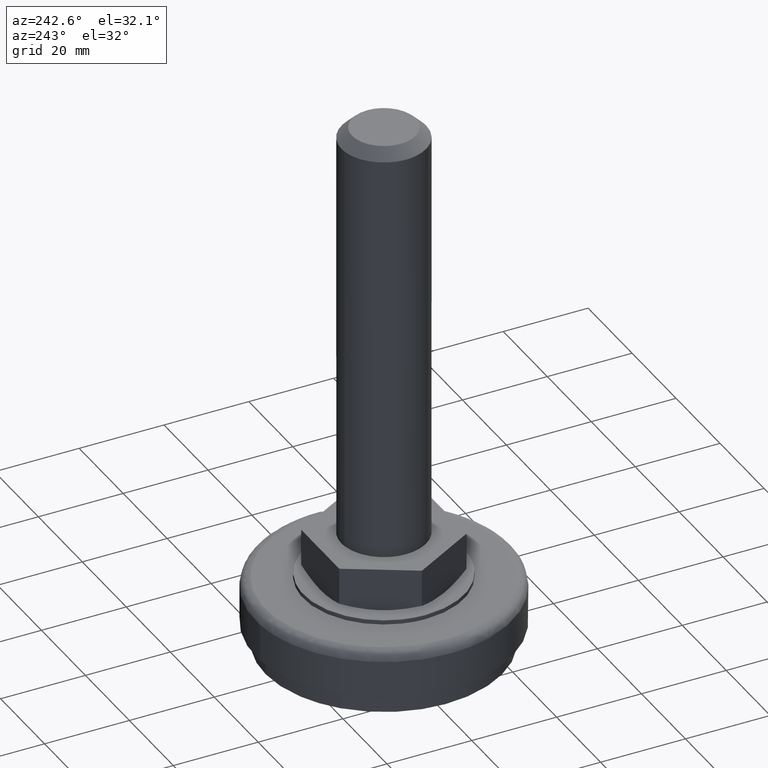
[diagram: clean part render]
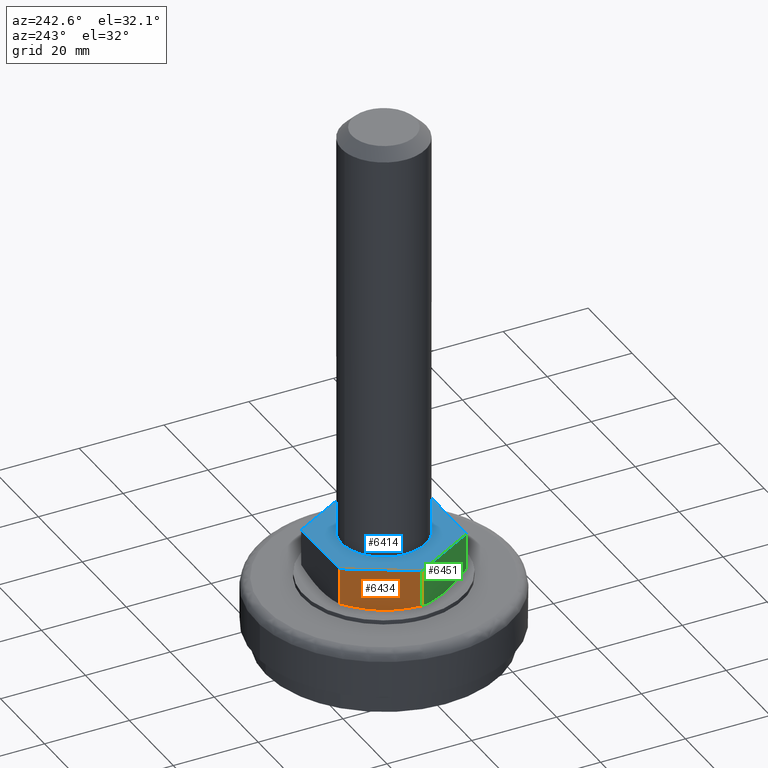
[diagram: same view with three faces highlighted in distinct colors, each labeled with its STEP entity id]
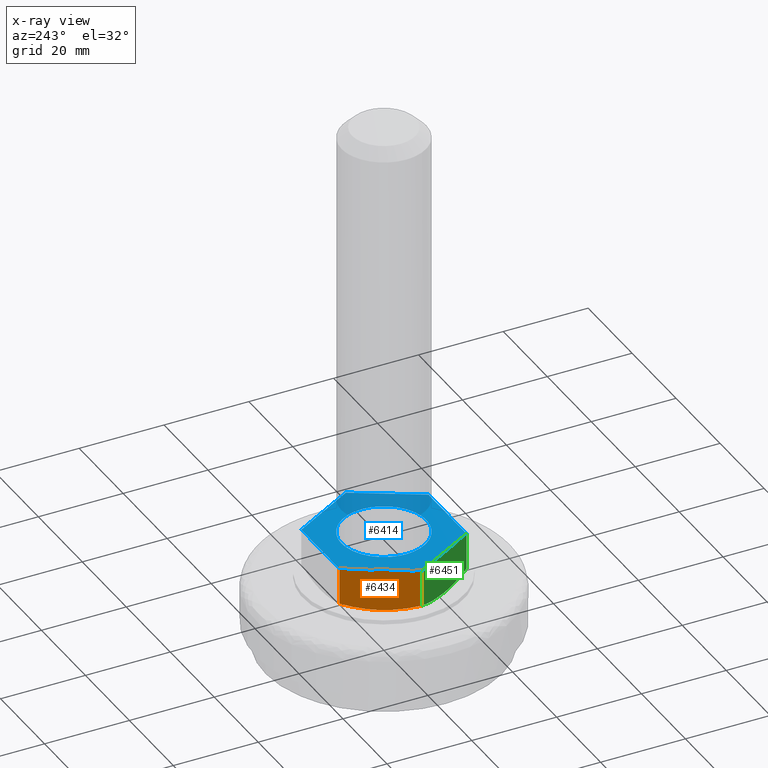
[diagram: x-ray of the same camera — body ghosted, the three highlighted faces saturated]
A machine part, auxiliary view with three faces highlighted in distinct colors.
The next image is the same camera in x-ray (body ghosted, the three faces saturated) — at least one of them is partly hidden behind the body in this view.
Their STEP definitions:

[orange] entity #6434 — the highlighted face is a freeform B-spline surface patch.
#4955=CARTESIAN_POINT('',(-17.300000000000001,0.0,18.339745951230949));
#4956=VERTEX_POINT('',#4955);
#4968=CARTESIAN_POINT('',(-8.639746000000001,15.0,18.345671394023451));
#4969=VERTEX_POINT('',#4968);
#4970=CARTESIAN_POINT('',(-8.639746000000001,15.0,18.345671394023451));
#4971=CARTESIAN_POINT('',(-9.346698966340242,13.775521538386331,17.936786780818139));
#4972=CARTESIAN_POINT('',(-10.058822484335931,12.542087418563140,17.599588998315021));
#4973=CARTESIAN_POINT('',(-11.138194585494050,10.672560090915260,17.248891436497171));
#4974=CARTESIAN_POINT('',(-11.499854347525430,10.046147005286279,17.157905752206489));
#4975=CARTESIAN_POINT('',(-12.227406586928559,8.785989555972773,17.034618634017662));
#4976=CARTESIAN_POINT('',(-12.593302747371361,8.152238813022050,17.002368263856621));
#4977=CARTESIAN_POINT('',(-13.053511370126790,7.355134092845090,17.001408450569720));
#4978=CARTESIAN_POINT('',(-13.145694399844620,7.195468401080466,17.003175605670020));
#4979=CARTESIAN_POINT('',(-13.330345165331980,6.875643892202268,17.010657207356971));
#4980=CARTESIAN_POINT('',(-13.422653180681939,6.715761718971631,17.016368104078960));
#4981=CARTESIAN_POINT('',(-13.698904168786321,6.237280969842828,17.039291775102338));
#4982=CARTESIAN_POINT('',(-13.882431816609071,5.919401757831108,17.062310992847959));
#4983=CARTESIAN_POINT('',(-14.431178601310799,4.968944442084268,17.153576613393700));
#4984=CARTESIAN_POINT('',(-14.794557260691599,4.339554138900086,17.244083217684519));
#4985=CARTESIAN_POINT('',(-15.878224604632839,2.462587232488510,17.593839847269571));
#4986=CARTESIAN_POINT('',(-16.592069824133230,1.226171038170648,17.931022273626709));
#4987=CARTESIAN_POINT('',(-17.300000000000001,0.0,18.339745951230949));
#4988=B_SPLINE_CURVE_WITH_KNOTS('',3,(#4970,#4971,#4972,#4973,#4974,#4975,#4976,#4977,#4978,#4979,#4980,#4981,#4982,#4983,#4984,#4985,#4986,#4987),.UNSPECIFIED.,.F.,.U.,(4,2,2,2,2,2,2,2,4),(0.0,0.250000000000000,0.375000000000000,0.500000000000000,0.531250000000000,0.562500000000000,0.625000000000000,0.750000000000000,1.0),.UNSPECIFIED.);
#4989=EDGE_CURVE('',#4969,#4956,#4988,.T.);
#6364=CARTESIAN_POINT('',(-8.639746000000001,15.0,27.0));
#6365=VERTEX_POINT('',#6364);
#6373=CARTESIAN_POINT('',(-17.300000000000001,0.0,27.0));
#6374=VERTEX_POINT('',#6373);
#6375=CARTESIAN_POINT('',(-17.300000000000001,0.0,27.0));
#6376=CARTESIAN_POINT('',(-8.639746000000001,15.0,27.0));
#6377=QUASI_UNIFORM_CURVE('',1,(#6375,#6376),.UNSPECIFIED.,.F.,.U.);
#6378=EDGE_CURVE('',#6374,#6365,#6377,.T.);
#6415=CARTESIAN_POINT('',(-17.732579507922210,-0.749249689308553,16.502168148292959));
#6416=CARTESIAN_POINT('',(-8.207166104934267,15.749250359860810,16.502168148292959));
#6417=CARTESIAN_POINT('',(-17.732579507922210,-0.749249689308553,27.499420889744950));
#6418=CARTESIAN_POINT('',(-8.207166104934267,15.749250359860810,27.499420889744950));
#6419=B_SPLINE_SURFACE_WITH_KNOTS('',1,1,((#6415,#6417),(#6416,#6418)),.UNSPECIFIED.,.F.,.F.,.U.,(2,2),(2,2),(0.0,19.050826868413449),(0.0,10.997252741451989),.UNSPECIFIED.);
#6420=CARTESIAN_POINT('',(-8.639746000000001,15.0,18.345671394023451));
#6421=CARTESIAN_POINT('',(-8.639746000000001,15.0,27.0));
#6422=QUASI_UNIFORM_CURVE('',1,(#6420,#6421),.UNSPECIFIED.,.F.,.U.);
#6423=EDGE_CURVE('',#4969,#6365,#6422,.T.);
#6424=ORIENTED_EDGE('',*,*,#6423,.F.);
#6425=ORIENTED_EDGE('',*,*,#4989,.T.);
#6426=CARTESIAN_POINT('',(-17.300000000000001,0.0,18.339745951230949));
#6427=CARTESIAN_POINT('',(-17.300000000000001,0.0,27.0));
#6428=QUASI_UNIFORM_CURVE('',1,(#6426,#6427),.UNSPECIFIED.,.F.,.U.);
#6429=EDGE_CURVE('',#4956,#6374,#6428,.T.);
#6430=ORIENTED_EDGE('',*,*,#6429,.T.);
#6431=ORIENTED_EDGE('',*,*,#6378,.T.);
#6432=EDGE_LOOP('',(#6424,#6425,#6430,#6431));
#6433=FACE_OUTER_BOUND('',#6432,.T.);
#6434=ADVANCED_FACE('',(#6433),#6419,.F.);

[blue] entity #6414 — the highlighted face is a freeform B-spline surface patch.
#5287=CARTESIAN_POINT('',(-1.241280020946220,9.922662138236882,27.0));
#5288=VERTEX_POINT('',#5287);
#5289=CARTESIAN_POINT('',(-10.0,0.0,27.0));
#5290=VERTEX_POINT('',#5289);
#5291=CARTESIAN_POINT('',(-1.241280020946220,9.922662138236882,26.999999999999996));
#5292=CARTESIAN_POINT('',(-10.0,8.826986001237051,27.000000000000004));
#5293=CARTESIAN_POINT('',(-10.0,0.0,27.0));
#5301=(BOUNDED_CURVE()B_SPLINE_CURVE(2,(#5291,#5292,#5293),.UNSPECIFIED.,.F.,.U.)B_SPLINE_CURVE_WITH_KNOTS((3,3),(0.271473928975729,0.500000000000000),.UNSPECIFIED.)CURVE()GEOMETRIC_REPRESENTATION_ITEM()RATIONAL_B_SPLINE_CURVE((0.954005430264961,0.732265053899639,1.0))REPRESENTATION_ITEM(''));
#5302=EDGE_CURVE('',#5288,#5290,#5301,.T.);
#5304=CARTESIAN_POINT('',(0.087265355144223,-9.999619230640310,27.0));
#5305=VERTEX_POINT('',#5304);
#5306=CARTESIAN_POINT('',(-10.0,0.0,27.0));
#5307=CARTESIAN_POINT('',(-10.000000000000002,-10.000000000000002,27.000000000000011));
#5308=CARTESIAN_POINT('',(0.0,-10.0,27.0));
#5309=CARTESIAN_POINT('',(0.043633508367480,-10.000000000000002,27.000000000000007));
#5310=CARTESIAN_POINT('',(0.087265355144223,-9.999619230640310,26.999999999999996));
#5318=(BOUNDED_CURVE()B_SPLINE_CURVE(2,(#5306,#5307,#5308,#5309,#5310),.UNSPECIFIED.,.F.,.U.)B_SPLINE_CURVE_WITH_KNOTS((3,2,3),(0.500000000000000,0.750000000000000,0.751539894340640),.UNSPECIFIED.)CURVE()GEOMETRIC_REPRESENTATION_ITEM()RATIONAL_B_SPLINE_CURVE((1.0,0.707106781186548,1.0,0.998195901559749,0.996414028087323))REPRESENTATION_ITEM(''));
#5319=EDGE_CURVE('',#5290,#5305,#5318,.T.);
#5358=CARTESIAN_POINT('',(10.0,0.0,27.0));
#5359=VERTEX_POINT('',#5358);
#5360=CARTESIAN_POINT('',(10.0,0.0,27.0));
#5361=CARTESIAN_POINT('',(10.000000000000002,10.000000000000002,27.000000000000011));
#5362=CARTESIAN_POINT('',(0.0,10.0,27.0));
#5363=CARTESIAN_POINT('',(-0.623049275484601,10.0,27.000000000000004));
#5364=CARTESIAN_POINT('',(-1.241280020946220,9.922662138236882,26.999999999999996));
#5372=(BOUNDED_CURVE()B_SPLINE_CURVE(2,(#5360,#5361,#5362,#5363,#5364),.UNSPECIFIED.,.F.,.U.)B_SPLINE_CURVE_WITH_KNOTS((3,2,3),(0.0,0.250000000000000,0.271473928975729),.UNSPECIFIED.)CURVE()GEOMETRIC_REPRESENTATION_ITEM()RATIONAL_B_SPLINE_CURVE((1.0,0.707106781186548,1.0,0.974841727286908,0.954005430264961))REPRESENTATION_ITEM(''));
#5373=EDGE_CURVE('',#5359,#5288,#5372,.T.);
#5381=CARTESIAN_POINT('',(0.087265355144223,-9.999619230640310,27.000000000000004));
#5382=CARTESIAN_POINT('',(10.0,-9.913112105631578,26.999999999999996));
#5383=CARTESIAN_POINT('',(10.0,0.0,27.0));
#5391=(BOUNDED_CURVE()B_SPLINE_CURVE(2,(#5381,#5382,#5383),.UNSPECIFIED.,.F.,.U.)B_SPLINE_CURVE_WITH_KNOTS((3,3),(0.751539894340641,1.0),.UNSPECIFIED.)CURVE()GEOMETRIC_REPRESENTATION_ITEM()RATIONAL_B_SPLINE_CURVE((0.996414028087321,0.708910879626799,1.0))REPRESENTATION_ITEM(''));
#5392=EDGE_CURVE('',#5305,#5359,#5391,.T.);
#6359=CARTESIAN_POINT('',(-19.028269159722889,-16.498499941854170,27.0));
#6360=CARTESIAN_POINT('',(19.028268231678581,-16.498499941854170,27.0));
#6361=CARTESIAN_POINT('',(-19.028269159722889,16.498500746516878,27.0));
#6362=CARTESIAN_POINT('',(19.028268231678581,16.498500746516878,27.0));
#6363=B_SPLINE_SURFACE_WITH_KNOTS('',1,1,((#6359,#6361),(#6360,#6362)),.UNSPECIFIED.,.F.,.F.,.U.,(2,2),(2,2),(0.0,38.056537391401477),(0.0,32.997000688371060),.UNSPECIFIED.);
#6364=CARTESIAN_POINT('',(-8.639746000000001,15.0,27.0));
#6365=VERTEX_POINT('',#6364);
#6366=CARTESIAN_POINT('',(8.639746000000001,15.0,27.0));
#6367=VERTEX_POINT('',#6366);
#6368=CARTESIAN_POINT('',(-8.639746000000001,15.0,27.0));
#6369=CARTESIAN_POINT('',(8.639746000000001,15.0,27.0));
#6370=QUASI_UNIFORM_CURVE('',1,(#6368,#6369),.UNSPECIFIED.,.F.,.U.);
#6371=EDGE_CURVE('',#6365,#6367,#6370,.T.);
#6372=ORIENTED_EDGE('',*,*,#6371,.F.);
#6373=CARTESIAN_POINT('',(-17.300000000000001,0.0,27.0));
#6374=VERTEX_POINT('',#6373);
#6375=CARTESIAN_POINT('',(-17.300000000000001,0.0,27.0));
#6376=CARTESIAN_POINT('',(-8.639746000000001,15.0,27.0));
#6377=QUASI_UNIFORM_CURVE('',1,(#6375,#6376),.UNSPECIFIED.,.F.,.U.);
#6378=EDGE_CURVE('',#6374,#6365,#6377,.T.);
#6379=ORIENTED_EDGE('',*,*,#6378,.F.);
#6380=CARTESIAN_POINT('',(-8.639746000000001,-15.0,27.0));
#6381=VERTEX_POINT('',#6380);
#6382=CARTESIAN_POINT('',(-8.639746000000001,-15.0,27.0));
#6383=CARTESIAN_POINT('',(-17.300000000000001,0.0,27.0));
#6384=QUASI_UNIFORM_CURVE('',1,(#6382,#6383),.UNSPECIFIED.,.F.,.U.);
#6385=EDGE_CURVE('',#6381,#6374,#6384,.T.);
#6386=ORIENTED_EDGE('',*,*,#6385,.F.);
#6387=CARTESIAN_POINT('',(8.639746000000001,-15.0,27.0));
#6388=VERTEX_POINT('',#6387);
#6389=CARTESIAN_POINT('',(8.639746000000001,-15.0,27.0));
#6390=CARTESIAN_POINT('',(-8.639746000000001,-15.0,27.0));
#6391=QUASI_UNIFORM_CURVE('',1,(#6389,#6390),.UNSPECIFIED.,.F.,.U.);
#6392=EDGE_CURVE('',#6388,#6381,#6391,.T.);
#6393=ORIENTED_EDGE('',*,*,#6392,.F.);
#6394=CARTESIAN_POINT('',(17.300000000000001,0.0,27.0));
#6395=VERTEX_POINT('',#6394);
#6396=CARTESIAN_POINT('',(17.300000000000001,0.0,27.0));
#6397=CARTESIAN_POINT('',(8.639746000000001,-15.0,27.0));
#6398=QUASI_UNIFORM_CURVE('',1,(#6396,#6397),.UNSPECIFIED.,.F.,.U.);
#6399=EDGE_CURVE('',#6395,#6388,#6398,.T.);
#6400=ORIENTED_EDGE('',*,*,#6399,.F.);
#6401=CARTESIAN_POINT('',(8.639746000000001,15.0,27.0));
#6402=CARTESIAN_POINT('',(17.300000000000001,0.0,27.0));
#6403=QUASI_UNIFORM_CURVE('',1,(#6401,#6402),.UNSPECIFIED.,.F.,.U.);
#6404=EDGE_CURVE('',#6367,#6395,#6403,.T.);
#6405=ORIENTED_EDGE('',*,*,#6404,.F.);
#6406=EDGE_LOOP('',(#6372,#6379,#6386,#6393,#6400,#6405));
#6407=FACE_OUTER_BOUND('',#6406,.T.);
#6408=ORIENTED_EDGE('',*,*,#5319,.F.);
#6409=ORIENTED_EDGE('',*,*,#5302,.F.);
#6410=ORIENTED_EDGE('',*,*,#5373,.F.);
#6411=ORIENTED_EDGE('',*,*,#5392,.F.);
#6412=EDGE_LOOP('',(#6408,#6409,#6410,#6411));
#6413=FACE_BOUND('',#6412,.T.);
#6414=ADVANCED_FACE('',(#6407,#6413),#6363,.T.);

[green] entity #6451 — the highlighted face is a freeform B-spline surface patch.
#4868=CARTESIAN_POINT('',(-8.639746000000001,-15.0,18.345671394023451));
#4869=VERTEX_POINT('',#4868);
#4894=CARTESIAN_POINT('',(-13.032687735863140,-7.391202111618559,17.001843396613818));
#4895=VERTEX_POINT('',#4894);
#4896=CARTESIAN_POINT('',(-13.032687735863140,-7.391202111618559,17.001843396613818));
#4897=CARTESIAN_POINT('',(-13.014411931020380,-7.422856308220807,17.001680640840132));
#4898=CARTESIAN_POINT('',(-12.996130750472460,-7.454520241890511,17.001594943532890));
#4899=CARTESIAN_POINT('',(-12.885799685170831,-7.645619253481210,17.001546577078152));
#4900=CARTESIAN_POINT('',(-12.793614645803320,-7.805288426061216,17.003465697697461));
#4901=CARTESIAN_POINT('',(-12.608961067811601,-8.125117806339880,17.011251166375370));
#4902=CARTESIAN_POINT('',(-12.516661840701410,-8.284984757892666,17.017113104138520));
#4903=CARTESIAN_POINT('',(-12.240427566274519,-8.763436558082734,17.040486526452501));
#4904=CARTESIAN_POINT('',(-12.056912984918901,-9.081293138309407,17.063800979005549));
#4905=CARTESIAN_POINT('',(-11.508210259183780,-10.031674141687230,17.155931109065520));
#4906=CARTESIAN_POINT('',(-11.144867414517440,-10.661002411966040,17.246985155436679));
#4907=CARTESIAN_POINT('',(-10.061320491401849,-12.537760743388390,17.598259512653591));
#4908=CARTESIAN_POINT('',(-9.347572270797720,-13.774008930688881,17.936281682498681));
#4909=CARTESIAN_POINT('',(-8.639746000000001,-15.0,18.345671394023451));
#4910=B_SPLINE_CURVE_WITH_KNOTS('',3,(#4896,#4897,#4898,#4899,#4900,#4901,#4902,#4903,#4904,#4905,#4906,#4907,#4908,#4909),.UNSPECIFIED.,.F.,.U.,(4,2,2,2,2,2,4),(0.493791454674778,0.500000000000000,0.531250000000000,0.562500000000000,0.625000000000000,0.750000000000000,1.0),.UNSPECIFIED.);
#4911=EDGE_CURVE('',#4895,#4869,#4910,.T.);
#4955=CARTESIAN_POINT('',(-17.300000000000001,0.0,18.339745951230949));
#4956=VERTEX_POINT('',#4955);
#4957=CARTESIAN_POINT('',(-17.300000000000001,0.0,18.339745951230949));
#4958=CARTESIAN_POINT('',(-16.592941722767868,-1.224660865429846,17.931525664538011));
#4959=CARTESIAN_POINT('',(-15.880722203566339,-2.458261264219870,17.595166574800249));
#4960=CARTESIAN_POINT('',(-14.801235094892659,-4.327987790728800,17.245981053792441));
#4961=CARTESIAN_POINT('',(-14.439541958482740,-4.954458682477336,17.155540189446288));
#4962=CARTESIAN_POINT('',(-13.730006321716210,-6.183410460508086,17.036431680644800));
#4963=CARTESIAN_POINT('',(-13.382364860527399,-6.785543136735829,17.004964920139731));
#4964=CARTESIAN_POINT('',(-13.032687735863140,-7.391202111618559,17.001843396613818));
#4965=B_SPLINE_CURVE_WITH_KNOTS('',3,(#4957,#4958,#4959,#4960,#4961,#4962,#4963,#4964),.UNSPECIFIED.,.F.,.U.,(4,2,2,4),(0.0,0.250000000000000,0.375000000000000,0.493791454674778),.UNSPECIFIED.);
#4966=EDGE_CURVE('',#4956,#4895,#4965,.T.);
#6373=CARTESIAN_POINT('',(-17.300000000000001,0.0,27.0));
#6374=VERTEX_POINT('',#6373);
#6380=CARTESIAN_POINT('',(-8.639746000000001,-15.0,27.0));
#6381=VERTEX_POINT('',#6380);
#6382=CARTESIAN_POINT('',(-8.639746000000001,-15.0,27.0));
#6383=CARTESIAN_POINT('',(-17.300000000000001,0.0,27.0));
#6384=QUASI_UNIFORM_CURVE('',1,(#6382,#6383),.UNSPECIFIED.,.F.,.U.);
#6385=EDGE_CURVE('',#6381,#6374,#6384,.T.);
#6426=CARTESIAN_POINT('',(-17.300000000000001,0.0,18.339745951230949));
#6427=CARTESIAN_POINT('',(-17.300000000000001,0.0,27.0));
#6428=QUASI_UNIFORM_CURVE('',1,(#6426,#6427),.UNSPECIFIED.,.F.,.U.);
#6429=EDGE_CURVE('',#4956,#6374,#6428,.T.);
#6435=CARTESIAN_POINT('',(-8.207166279129492,-15.749250058145821,16.502434514433158));
#6436=CARTESIAN_POINT('',(-17.732579256298290,0.749249253483108,16.502434514433158));
#6437=CARTESIAN_POINT('',(-8.207166279129492,-15.749250058145821,27.499408217723708));
#6438=CARTESIAN_POINT('',(-17.732579256298290,0.749249253483108,27.499408217723708));
#6439=B_SPLINE_SURFACE_WITH_KNOTS('',1,1,((#6435,#6437),(#6436,#6438)),.UNSPECIFIED.,.F.,.F.,.U.,(2,2),(2,2),(0.0,19.050826016775130),(0.0,10.996973703290550),.UNSPECIFIED.);
#6440=ORIENTED_EDGE('',*,*,#6429,.F.);
#6441=ORIENTED_EDGE('',*,*,#4966,.T.);
#6442=ORIENTED_EDGE('',*,*,#4911,.T.);
#6443=CARTESIAN_POINT('',(-8.639746000000001,-15.0,18.345671394023451));
#6444=CARTESIAN_POINT('',(-8.639746000000001,-15.0,27.0));
#6445=QUASI_UNIFORM_CURVE('',1,(#6443,#6444),.UNSPECIFIED.,.F.,.U.);
#6446=EDGE_CURVE('',#4869,#6381,#6445,.T.);
#6447=ORIENTED_EDGE('',*,*,#6446,.T.);
#6448=ORIENTED_EDGE('',*,*,#6385,.T.);
#6449=EDGE_LOOP('',(#6440,#6441,#6442,#6447,#6448));
#6450=FACE_OUTER_BOUND('',#6449,.T.);
#6451=ADVANCED_FACE('',(#6450),#6439,.F.);